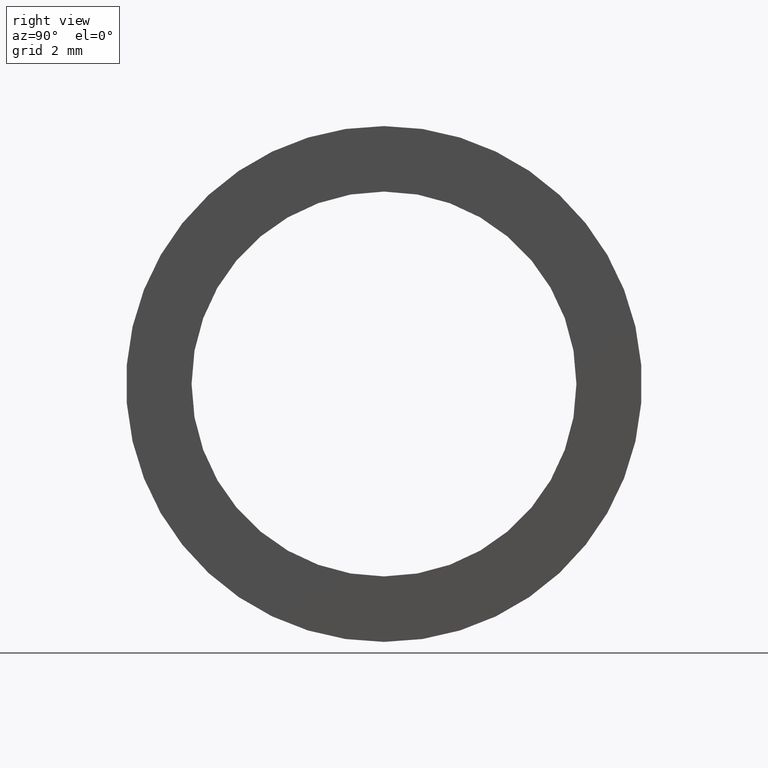
[diagram: clean part render]
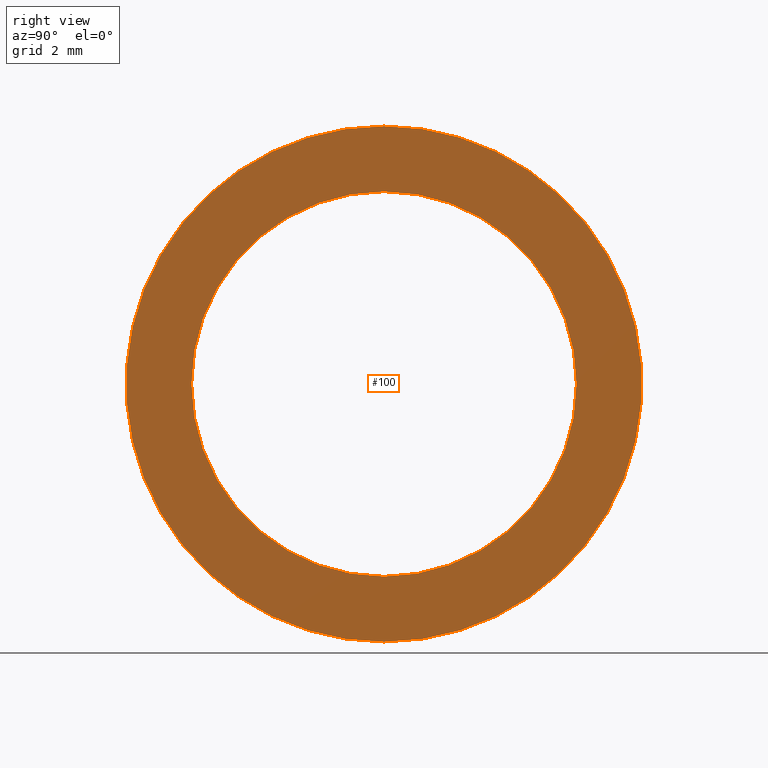
[diagram: same view with one face highlighted and labeled with its STEP entity id]
A machine part, right view. The second image highlights one B-rep face of the part: STEP entity #100.
In plain terms, the highlighted planar face has unit normal (1, 0, 0).
Its self-contained STEP definition (entity closure, byte-faithful):
#17 = CARTESIAN_POINT ( 'NONE',  ( 0.07999999999999996000, 0.0000000000000000000, 0.3150000000000000600 ) ) ;
#22 = VERTEX_POINT ( 'NONE', #76 ) ;
#34 = CARTESIAN_POINT ( 'NONE',  ( 0.07999999999999996000, 3.857637417314163300E-017, -0.3150000000000000600 ) ) ;
#46 = EDGE_CURVE ( 'NONE', #137, #59, #70, .T. ) ;
#56 = EDGE_CURVE ( 'NONE', #59, #137, #120, .T. ) ;
#59 = VERTEX_POINT ( 'NONE', #17 ) ;
#67 = DIRECTION ( 'NONE',  ( -1.000000000000000000, 0.0000000000000000000, 0.0000000000000000000 ) ) ;
#68 = CARTESIAN_POINT ( 'NONE',  ( 0.07999999999999996000, 0.0000000000000000000, 0.0000000000000000000 ) ) ;
#69 = AXIS2_PLACEMENT_3D ( 'NONE', #68, #67, #152 ) ;
#70 = CIRCLE ( 'NONE', #69, 0.3150000000000000600 ) ;
#76 = CARTESIAN_POINT ( 'NONE',  ( 0.07999999999999996000, 0.0000000000000000000, 0.2349999999999999600 ) ) ;
#91 = ORIENTED_EDGE ( 'NONE', *, *, #56, .F. ) ;
#94 = EDGE_LOOP ( 'NONE', ( #102, #125 ) ) ;
#95 = ORIENTED_EDGE ( 'NONE', *, *, #46, .F. ) ;
#99 = EDGE_CURVE ( 'NONE', #22, #130, #113, .T. ) ;
#100 = ADVANCED_FACE ( 'NONE', ( #109, #108 ), #107, .T. ) ;
#101 = EDGE_LOOP ( 'NONE', ( #91, #95 ) ) ;
#102 = ORIENTED_EDGE ( 'NONE', *, *, #99, .T. ) ;
#103 = DIRECTION ( 'NONE',  ( 0.0000000000000000000, 0.0000000000000000000, -1.000000000000000000 ) ) ;
#104 = DIRECTION ( 'NONE',  ( 1.000000000000000000, 0.0000000000000000000, 0.0000000000000000000 ) ) ;
#105 = CARTESIAN_POINT ( 'NONE',  ( 0.07999999999999996000, -0.2349999999999999600, 0.0000000000000000000 ) ) ;
#106 = AXIS2_PLACEMENT_3D ( 'NONE', #105, #104, #103 ) ;
#107 = PLANE ( 'NONE',  #106 ) ;
#108 = FACE_OUTER_BOUND ( 'NONE', #101, .T. ) ;
#109 = FACE_BOUND ( 'NONE', #94, .T. ) ;
#110 = DIRECTION ( 'NONE',  ( 0.0000000000000000000, 0.0000000000000000000, 1.000000000000000000 ) ) ;
#111 = DIRECTION ( 'NONE',  ( -1.000000000000000000, 0.0000000000000000000, 0.0000000000000000000 ) ) ;
#112 = AXIS2_PLACEMENT_3D ( 'NONE', #162, #111, #110 ) ;
#113 = CIRCLE ( 'NONE', #112, 0.2349999999999999600 ) ;
#117 = DIRECTION ( 'NONE',  ( 0.0000000000000000000, 0.0000000000000000000, 1.000000000000000000 ) ) ;
#118 = DIRECTION ( 'NONE',  ( -1.000000000000000000, 0.0000000000000000000, 0.0000000000000000000 ) ) ;
#119 = AXIS2_PLACEMENT_3D ( 'NONE', #146, #118, #117 ) ;
#120 = CIRCLE ( 'NONE', #119, 0.3150000000000000600 ) ;
#125 = ORIENTED_EDGE ( 'NONE', *, *, #129, .T. ) ;
#129 = EDGE_CURVE ( 'NONE', #130, #22, #160, .T. ) ;
#130 = VERTEX_POINT ( 'NONE', #155 ) ;
#137 = VERTEX_POINT ( 'NONE', #34 ) ;
#146 = CARTESIAN_POINT ( 'NONE',  ( 0.07999999999999996000, 0.0000000000000000000, 0.0000000000000000000 ) ) ;
#152 = DIRECTION ( 'NONE',  ( 0.0000000000000000000, 0.0000000000000000000, 1.000000000000000000 ) ) ;
#155 = CARTESIAN_POINT ( 'NONE',  ( 0.07999999999999996000, 2.877919977996279200E-017, -0.2349999999999999600 ) ) ;
#156 = DIRECTION ( 'NONE',  ( 0.0000000000000000000, 0.0000000000000000000, 1.000000000000000000 ) ) ;
#157 = DIRECTION ( 'NONE',  ( -1.000000000000000000, 0.0000000000000000000, 0.0000000000000000000 ) ) ;
#158 = CARTESIAN_POINT ( 'NONE',  ( 0.07999999999999996000, 0.0000000000000000000, 0.0000000000000000000 ) ) ;
#159 = AXIS2_PLACEMENT_3D ( 'NONE', #158, #157, #156 ) ;
#160 = CIRCLE ( 'NONE', #159, 0.2349999999999999600 ) ;
#162 = CARTESIAN_POINT ( 'NONE',  ( 0.07999999999999996000, 0.0000000000000000000, 0.0000000000000000000 ) ) ;